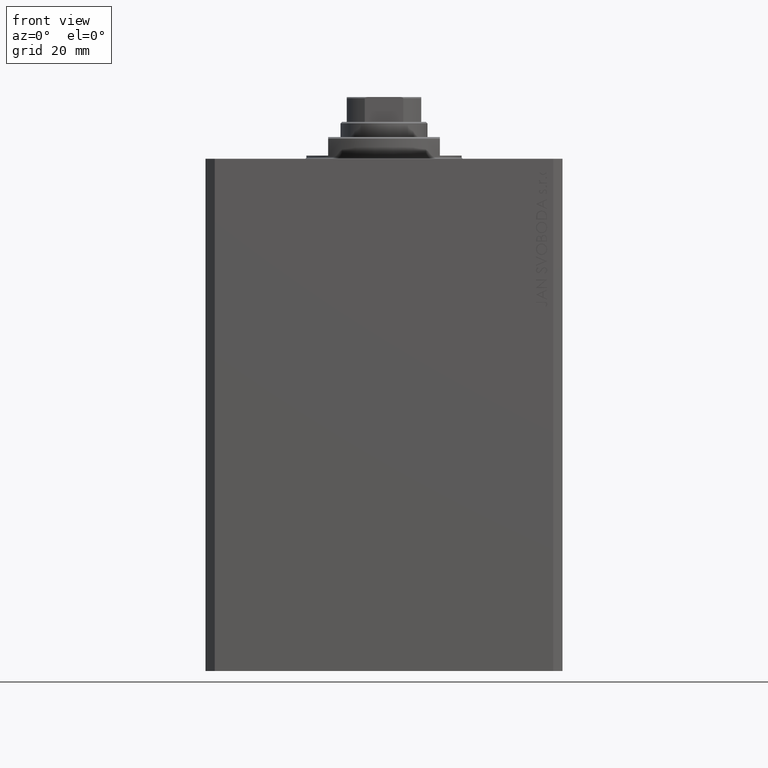
[diagram: clean part render]
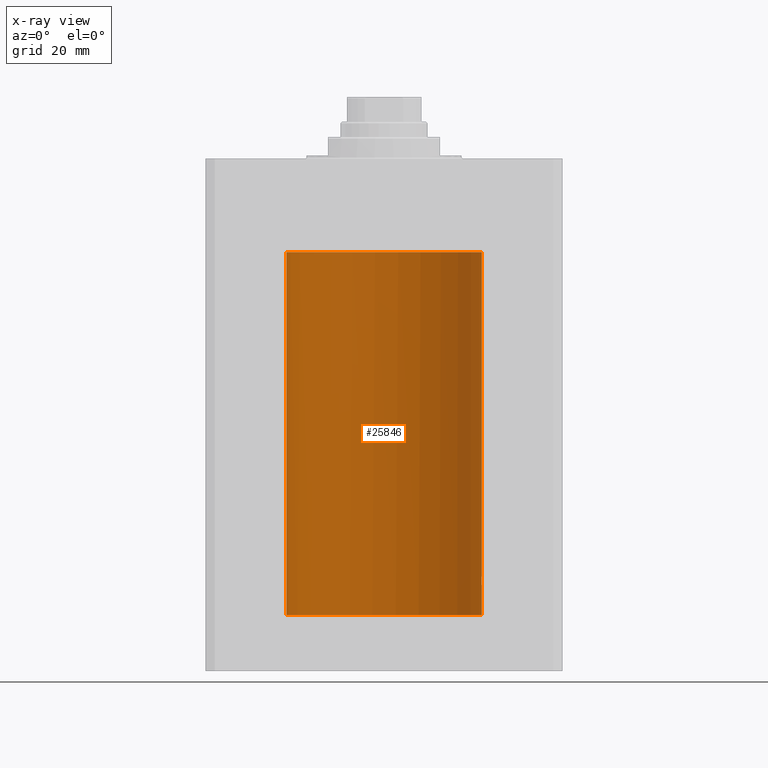
[diagram: x-ray — body ghosted, one internal face saturated and labeled with its STEP entity id]
A machine part, front view, then the same camera in x-ray: the body is ghosted and one INTERNAL B-rep face — a face not visible from any outside direction — is saturated and labeled: STEP entity #25846.
In plain terms, the highlighted cylindrical surface (partial cylindrical patch) has radius 31.5 mm, axis along (0, 0, 1).
Its self-contained STEP definition (entity closure, byte-faithful):
#102 = CARTESIAN_POINT ( 'NONE',  ( -31.45568311132346295, 1.670329308849017202, -30.10000000000000142 ) ) ;
#621 = CIRCLE ( 'NONE', #30054, 31.50000000000000000 ) ;
#1112 = CARTESIAN_POINT ( 'NONE',  ( 0.000000000000000000, 0.000000000000000000, -147.1000000000000227 ) ) ;
#1602 = CARTESIAN_POINT ( 'NONE',  ( 31.50000000000000711, 0.1322106156816646172, -138.0000000000000568 ) ) ;
#1622 = CARTESIAN_POINT ( 'NONE',  ( 31.46404119587053927, 1.507594711990238201, -134.6791728524376310 ) ) ;
#1842 = CARTESIAN_POINT ( 'NONE',  ( 31.49916210907646175, 0.2630769646869162703, -134.0130766648357508 ) ) ;
#2599 = ORIENTED_EDGE ( 'NONE', *, *, #44259, .F. ) ;
#2841 = DIRECTION ( 'NONE',  ( -0.000000000000000000, -0.000000000000000000, 1.000000000000000000 ) ) ;
#2921 = ORIENTED_EDGE ( 'NONE', *, *, #6732, .F. ) ;
#3092 = ORIENTED_EDGE ( 'NONE', *, *, #27947, .T. ) ;
#3443 = CARTESIAN_POINT ( 'NONE',  ( 31.43644381923627051, 2.000000000000389910, -136.0000000000000000 ) ) ;
#4300 = CARTESIAN_POINT ( 'NONE',  ( 31.43989559156923264, 1.947546710638696110, -136.5243738522823378 ) ) ;
#4765 = CARTESIAN_POINT ( 'NONE',  ( 31.45991621267056004, 1.590260824275577356, -134.7801457396745093 ) ) ;
#5214 = CARTESIAN_POINT ( 'NONE',  ( 31.47656038302703507, 1.219789706799898843, -134.4096921557544988 ) ) ;
#6040 = ORIENTED_EDGE ( 'NONE', *, *, #40484, .T. ) ;
#6732 = EDGE_CURVE ( 'NONE', #17048, #35059, #28098, .T. ) ;
#7225 = EDGE_CURVE ( 'NONE', #17048, #40545, #30599, .T. ) ;
#8593 = CARTESIAN_POINT ( 'NONE',  ( 31.50000000000000711, 0.1305169792915967519, -133.9999999999999432 ) ) ;
#8834 = CARTESIAN_POINT ( 'NONE',  ( -31.50000000000000000, 3.857542963677526976E-15, -30.99999999999999645 ) ) ;
#9124 = LINE ( 'NONE', #10006, #15084 ) ;
#9986 = DIRECTION ( 'NONE',  ( 1.000000000000000000, 0.000000000000000000, 0.000000000000000000 ) ) ;
#10006 = CARTESIAN_POINT ( 'NONE',  ( 31.50000000000000000, 0.000000000000000000, -147.1000000000000227 ) ) ;
#10414 = CARTESIAN_POINT ( 'NONE',  ( 31.44047330683569186, 1.935793094480593224, -135.4805747813048526 ) ) ;
#11491 = CARTESIAN_POINT ( 'NONE',  ( 31.43644381923627762, 2.000000000000387246, -136.2610318865086185 ) ) ;
#11681 = ORIENTED_EDGE ( 'NONE', *, *, #39671, .T. ) ;
#11719 = CARTESIAN_POINT ( 'NONE',  ( 31.49362851683618914, 0.6450141649083286355, -137.8976700761137124 ) ) ;
#11970 = CARTESIAN_POINT ( 'NONE',  ( -31.48136522371477852, 1.092934591159441693, -30.68296962504550507 ) ) ;
#12189 = CARTESIAN_POINT ( 'NONE',  ( -31.49006417643538569, 0.8041893641746242771, -30.83852447520479956 ) ) ;
#12727 = VERTEX_POINT ( 'NONE', #15422 ) ;
#13185 = CARTESIAN_POINT ( 'NONE',  ( -31.50000000000000000, 3.857637417314162689E-15, -147.1000000000000227 ) ) ;
#13675 = ORIENTED_EDGE ( 'NONE', *, *, #28297, .T. ) ;
#13938 = EDGE_CURVE ( 'NONE', #26937, #12727, #22708, .T. ) ;
#14633 = CARTESIAN_POINT ( 'NONE',  ( 31.50000000000000000, 0.000000000000000000, -147.1000000000000227 ) ) ;
#15084 = VECTOR ( 'NONE', #33857, 1000.000000000000000 ) ;
#15422 = CARTESIAN_POINT ( 'NONE',  ( 31.50000000000000000, -8.369814204394935255E-24, -134.0000000000000000 ) ) ;
#16089 = VERTEX_POINT ( 'NONE', #102 ) ;
#17048 = VERTEX_POINT ( 'NONE', #14633 ) ;
#17775 = CARTESIAN_POINT ( 'NONE',  ( 31.45992223434330981, 1.599182806012582558, -137.2291100714819265 ) ) ;
#18011 = CARTESIAN_POINT ( 'NONE',  ( 31.47656968928225751, 1.219587704424718533, -137.5905023401450933 ) ) ;
#18932 = CARTESIAN_POINT ( 'NONE',  ( -31.49373304996191791, 0.6483417414291828829, -30.89916737967284988 ) ) ;
#19592 = CARTESIAN_POINT ( 'NONE',  ( -31.47622270810187928, 1.229689797707025578, -30.58584657277510388 ) ) ;
#20373 = DIRECTION ( 'NONE',  ( 0.000000000000000000, 0.000000000000000000, 1.000000000000000000 ) ) ;
#20454 = EDGE_LOOP ( 'NONE', ( #2599, #2921, #32628, #3092, #36556, #13675, #6040, #11681 ) ) ;
#20537 = CARTESIAN_POINT ( 'NONE',  ( 31.50000000000000000, -5.244345426788806144E-15, -138.0000000000000000 ) ) ;
#21373 = CARTESIAN_POINT ( 'NONE',  ( 31.47236118406704364, 1.322499398534440429, -137.5059945699081823 ) ) ;
#22292 = CARTESIAN_POINT ( 'NONE',  ( 31.44280827872263018, 1.897980201673368450, -135.3559202626804563 ) ) ;
#22304 = CARTESIAN_POINT ( 'NONE',  ( -31.50000000000000000, 0.1657740143102494623, -31.00000000000000711 ) ) ;
#22708 = B_SPLINE_CURVE_WITH_KNOTS ( 'NONE', 3,
 ( #3443, #30874, #41226, #10414, #22292, #42989, #32654, #4765, #1622, #35800, #5214, #35132, #29056, #38503, #31980, #1842, #8593, #35582 ),
 .UNSPECIFIED., .F., .F.,
 ( 4, 2, 2, 2, 2, 2, 2, 2, 4 ),
 ( 0.003127956870251400769, 0.003518772842989208692, 0.003909588815727015748, 0.004300404788464823672, 0.004691220761202631595, 0.005082036733940439518, 0.005472852706678247442, 0.005863668679416054498, 0.006254484652153862421 ),
 .UNSPECIFIED. ) ;
#22959 = B_SPLINE_CURVE_WITH_KNOTS ( 'NONE', 3,
 ( #39634, #43004, #29511, #19592, #11970, #12189, #18932, #28843, #22304, #8834 ),
 .UNSPECIFIED., .F., .F.,
 ( 4, 2, 2, 2, 4 ),
 ( 0.000000000000000000, 0.0004921177670202515984, 0.0009842355340405031967, 0.001476353301060754795, 0.001968471068081006393 ),
 .UNSPECIFIED. ) ;
#23623 = DIRECTION ( 'NONE',  ( -0.000000000000000000, -0.000000000000000000, 1.000000000000000000 ) ) ;
#24546 = CARTESIAN_POINT ( 'NONE',  ( 31.43644381923627051, 2.000000000000389910, -136.0000000000000000 ) ) ;
#25139 = VECTOR ( 'NONE', #2841, 1000.000000000000000 ) ;
#25442 = CARTESIAN_POINT ( 'NONE',  ( 31.48424227690099642, 1.002158581476550347, -137.7357332860677843 ) ) ;
#25846 = ADVANCED_FACE ( 'NONE', ( #42715 ), #39332, .F. ) ;
#26564 = CARTESIAN_POINT ( 'NONE',  ( 31.50000000000000000, 0.000000000000000000, -147.1000000000000227 ) ) ;
#26937 = VERTEX_POINT ( 'NONE', #43829 ) ;
#27947 = EDGE_CURVE ( 'NONE', #40545, #26937, #32768, .T. ) ;
#28098 = CIRCLE ( 'NONE', #39604, 31.50000000000000000 ) ;
#28297 = EDGE_CURVE ( 'NONE', #12727, #35109, #9124, .T. ) ;
#28843 = CARTESIAN_POINT ( 'NONE',  ( -31.49869211956624682, 0.3285775292346077570, -30.97970213844783416 ) ) ;
#29056 = CARTESIAN_POINT ( 'NONE',  ( 31.48776132734998967, 0.8863252928784803863, -134.2023288708493283 ) ) ;
#29511 = CARTESIAN_POINT ( 'NONE',  ( -31.46581137650060356, 1.472225318046969322, -30.36367113479343161 ) ) ;
#30054 = AXIS2_PLACEMENT_3D ( 'NONE', #41021, #30669, #9986 ) ;
#30471 = CARTESIAN_POINT ( 'NONE',  ( -31.50000000000000000, 3.857637417314162689E-15, -147.1000000000000227 ) ) ;
#30599 = LINE ( 'NONE', #26564, #35299 ) ;
#30669 = DIRECTION ( 'NONE',  ( 0.000000000000000000, 0.000000000000000000, 1.000000000000000000 ) ) ;
#30874 = CARTESIAN_POINT ( 'NONE',  ( 31.43644381923627051, 2.000000000000391687, -135.8695436863447412 ) ) ;
#31980 = CARTESIAN_POINT ( 'NONE',  ( 31.49597888575898708, 0.5193621964009151881, -134.0641961002934295 ) ) ;
#32406 = CARTESIAN_POINT ( 'NONE',  ( 31.49600115550921231, 0.5179422407981826293, -137.9361644646872378 ) ) ;
#32628 = ORIENTED_EDGE ( 'NONE', *, *, #7225, .T. ) ;
#32654 = CARTESIAN_POINT ( 'NONE',  ( 31.45226167581968113, 1.735077252816690230, -134.9967648169954657 ) ) ;
#32768 = B_SPLINE_CURVE_WITH_KNOTS ( 'NONE', 3,
 ( #42082, #1602, #38935, #32406, #11719, #42536, #25442, #18011, #21373, #17775, #35111, #4300, #11491, #24546 ),
 .UNSPECIFIED., .F., .F.,
 ( 4, 2, 2, 2, 2, 2, 4 ),
 ( 5.096331421419789159E-18, 0.0003909946087814292703, 0.0007819892175628534448, 0.001172983826344277999, 0.001563978435125702553, 0.002345967652688551661, 0.003127956870251400769 ),
 .UNSPECIFIED. ) ;
#32798 = VERTEX_POINT ( 'NONE', #42970 ) ;
#33656 = CARTESIAN_POINT ( 'NONE',  ( 0.000000000000000000, 0.000000000000000000, -147.1000000000000227 ) ) ;
#33726 = AXIS2_PLACEMENT_3D ( 'NONE', #1112, #42038, #35067 ) ;
#33857 = DIRECTION ( 'NONE',  ( -0.000000000000000000, -0.000000000000000000, 1.000000000000000000 ) ) ;
#34069 = CARTESIAN_POINT ( 'NONE',  ( 31.50000000000000000, 0.000000000000000000, -30.10000000000000142 ) ) ;
#34112 = DIRECTION ( 'NONE',  ( 1.000000000000000000, 0.000000000000000000, 0.000000000000000000 ) ) ;
#35059 = VERTEX_POINT ( 'NONE', #30471 ) ;
#35067 = DIRECTION ( 'NONE',  ( 1.000000000000000000, 0.000000000000000000, 0.000000000000000000 ) ) ;
#35109 = VERTEX_POINT ( 'NONE', #34069 ) ;
#35111 = CARTESIAN_POINT ( 'NONE',  ( 31.45161214644910075, 1.748160858796773631, -137.0059024499661291 ) ) ;
#35132 = CARTESIAN_POINT ( 'NONE',  ( 31.48420706794360058, 1.003217712170305864, -134.2649149328429132 ) ) ;
#35299 = VECTOR ( 'NONE', #23623, 1000.000000000000000 ) ;
#35582 = CARTESIAN_POINT ( 'NONE',  ( 31.50000000000000000, -8.369814204394935255E-24, -134.0000000000000000 ) ) ;
#35800 = CARTESIAN_POINT ( 'NONE',  ( 31.47243113015943550, 1.320912165297383201, -134.4924797776056948 ) ) ;
#36556 = ORIENTED_EDGE ( 'NONE', *, *, #13938, .T. ) ;
#38503 = CARTESIAN_POINT ( 'NONE',  ( 31.49364883223205425, 0.6440257487116654023, -134.1019945078124351 ) ) ;
#38935 = CARTESIAN_POINT ( 'NONE',  ( 31.49916827061299784, 0.2622045237009093532, -137.9870193222189130 ) ) ;
#39332 = CYLINDRICAL_SURFACE ( 'NONE', #33726, 31.50000000000000000 ) ;
#39604 = AXIS2_PLACEMENT_3D ( 'NONE', #33656, #20373, #34112 ) ;
#39634 = CARTESIAN_POINT ( 'NONE',  ( -31.45568311132346295, 1.670329308849017202, -30.10000000000000142 ) ) ;
#39671 = EDGE_CURVE ( 'NONE', #16089, #32798, #22959, .T. ) ;
#40166 = LINE ( 'NONE', #13185, #25139 ) ;
#40484 = EDGE_CURVE ( 'NONE', #35109, #16089, #621, .T. ) ;
#40545 = VERTEX_POINT ( 'NONE', #20537 ) ;
#41021 = CARTESIAN_POINT ( 'NONE',  ( 0.000000000000000000, 0.000000000000000000, -30.10000000000000142 ) ) ;
#41226 = CARTESIAN_POINT ( 'NONE',  ( 31.43728213781475489, 1.986944500966170146, -135.7370380017273135 ) ) ;
#42038 = DIRECTION ( 'NONE',  ( -0.000000000000000000, -0.000000000000000000, 1.000000000000000000 ) ) ;
#42082 = CARTESIAN_POINT ( 'NONE',  ( 31.50000000000000000, -5.244345426788806144E-15, -138.0000000000000000 ) ) ;
#42536 = CARTESIAN_POINT ( 'NONE',  ( 31.48773468680478160, 0.8872681233992232297, -137.7972062396702313 ) ) ;
#42715 = FACE_OUTER_BOUND ( 'NONE', #20454, .T. ) ;
#42970 = CARTESIAN_POINT ( 'NONE',  ( -31.50000000000000000, 3.857542963677526976E-15, -30.99999999999999645 ) ) ;
#42989 = CARTESIAN_POINT ( 'NONE',  ( 31.44869941755756315, 1.797728078038221655, -135.1138051504310056 ) ) ;
#43004 = CARTESIAN_POINT ( 'NONE',  ( -31.46054086632929625, 1.578847945691098875, -30.23891272917829909 ) ) ;
#43829 = CARTESIAN_POINT ( 'NONE',  ( 31.43644381923627051, 2.000000000000389910, -136.0000000000000000 ) ) ;
#44259 = EDGE_CURVE ( 'NONE', #35059, #32798, #40166, .T. ) ;